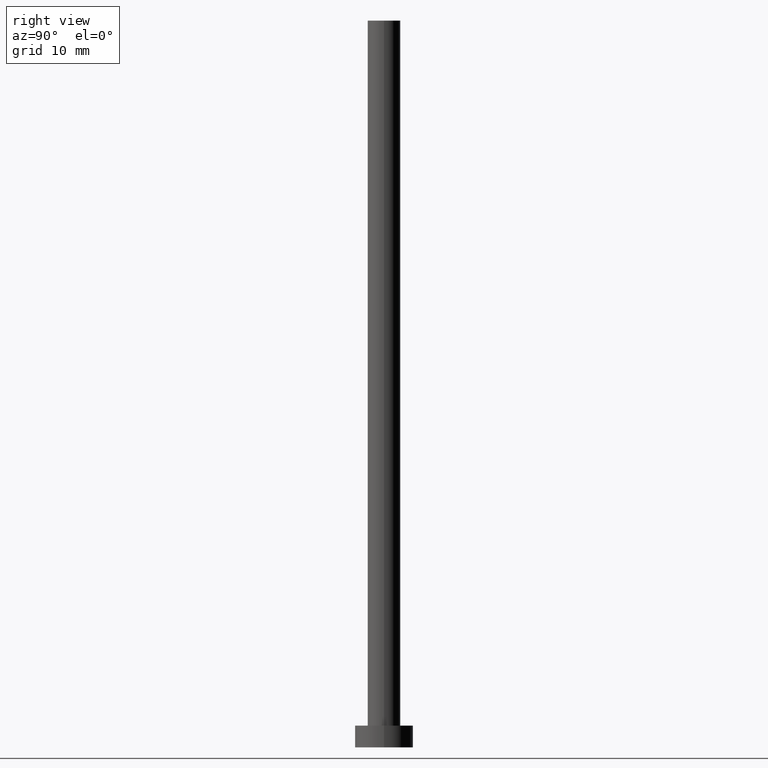
[diagram: clean part render]
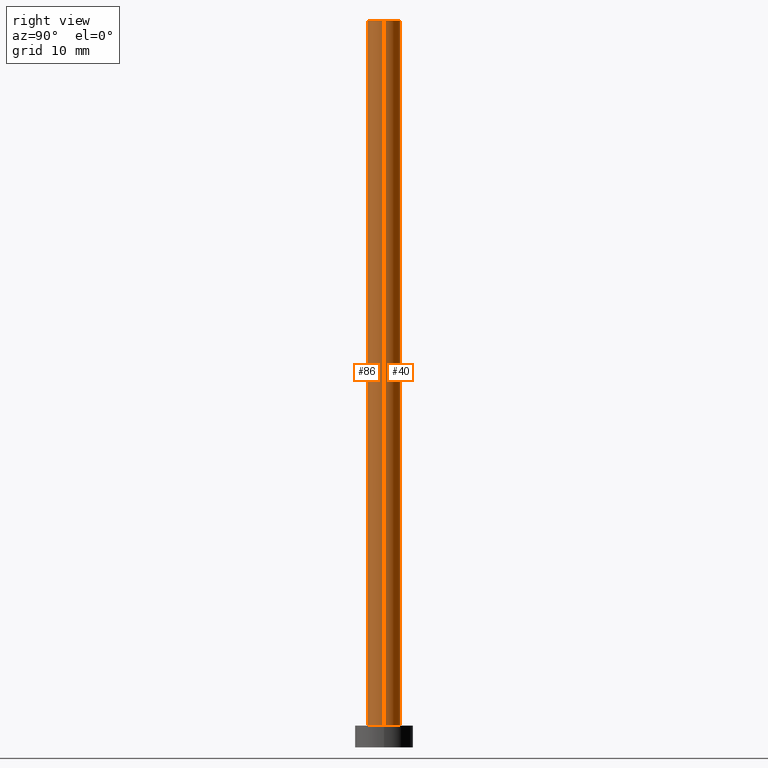
[diagram: same view with one multi-face feature highlighted, each face labeled with its STEP entity id]
A machine part, right view. The highlighted faces form ONE feature: a constant-radius fillet chain: 2 tangent blend faces with common blend radius 2.25 mm. The faces share edges in the B-rep.
Their STEP definitions:
[1] entity #86 (Cylinder):
#4 = CARTESIAN_POINT ( 'NONE',  ( -2.250000000000000000, 0.000000000000000000, 100.0000000000000000 ) ) ;
#17 = DIRECTION ( 'NONE',  ( 0.000000000000000000, 0.000000000000000000, 1.000000000000000000 ) ) ;
#26 = AXIS2_PLACEMENT_3D ( 'NONE', #164, #73, #224 ) ;
#30 = CARTESIAN_POINT ( 'NONE',  ( 0.000000000000000000, 0.000000000000000000, 3.000000000000000000 ) ) ;
#33 = EDGE_CURVE ( 'NONE', #170, #131, #155, .T. ) ;
#62 = VERTEX_POINT ( 'NONE', #187 ) ;
#63 = ORIENTED_EDGE ( 'NONE', *, *, #76, .F. ) ;
#72 = VECTOR ( 'NONE', #217, 1000.000000000000000 ) ;
#73 = DIRECTION ( 'NONE',  ( -0.000000000000000000, -0.000000000000000000, -1.000000000000000000 ) ) ;
#76 = EDGE_CURVE ( 'NONE', #175, #131, #189, .T. ) ;
#78 = DIRECTION ( 'NONE',  ( 1.000000000000000000, 0.000000000000000000, 0.000000000000000000 ) ) ;
#85 = DIRECTION ( 'NONE',  ( 0.000000000000000000, 0.000000000000000000, 1.000000000000000000 ) ) ;
#86 = ADVANCED_FACE ( 'NONE', ( #166 ), #245, .T. ) ;
#92 = DIRECTION ( 'NONE',  ( -0.000000000000000000, -0.000000000000000000, -1.000000000000000000 ) ) ;
#120 = CARTESIAN_POINT ( 'NONE',  ( -2.250000000000000000, 0.000000000000000000, 3.000000000000000000 ) ) ;
#125 = CARTESIAN_POINT ( 'NONE',  ( 2.250000000000000000, 2.755455298081543792E-16, 100.0000000000000000 ) ) ;
#126 = CARTESIAN_POINT ( 'NONE',  ( 0.000000000000000000, 0.000000000000000000, 100.0000000000000000 ) ) ;
#127 = EDGE_CURVE ( 'NONE', #62, #175, #143, .T. ) ;
#129 = ORIENTED_EDGE ( 'NONE', *, *, #127, .F. ) ;
#131 = VERTEX_POINT ( 'NONE', #151 ) ;
#136 = CARTESIAN_POINT ( 'NONE',  ( 2.250000000000000000, 2.755455298081543792E-16, 100.0000000000000000 ) ) ;
#138 = LINE ( 'NONE', #4, #72 ) ;
#143 = CIRCLE ( 'NONE', #254, 2.250000000000000000 ) ;
#151 = CARTESIAN_POINT ( 'NONE',  ( 2.250000000000000000, 2.755455298081543792E-16, 3.000000000000000000 ) ) ;
#155 = CIRCLE ( 'NONE', #253, 2.250000000000000000 ) ;
#157 = ORIENTED_EDGE ( 'NONE', *, *, #179, .T. ) ;
#162 = DIRECTION ( 'NONE',  ( 1.000000000000000000, 0.000000000000000000, 0.000000000000000000 ) ) ;
#164 = CARTESIAN_POINT ( 'NONE',  ( 0.000000000000000000, 0.000000000000000000, 100.0000000000000000 ) ) ;
#166 = FACE_OUTER_BOUND ( 'NONE', #225, .T. ) ;
#170 = VERTEX_POINT ( 'NONE', #120 ) ;
#175 = VERTEX_POINT ( 'NONE', #136 ) ;
#179 = EDGE_CURVE ( 'NONE', #62, #170, #138, .T. ) ;
#187 = CARTESIAN_POINT ( 'NONE',  ( -2.250000000000000000, 0.000000000000000000, 100.0000000000000000 ) ) ;
#189 = LINE ( 'NONE', #125, #235 ) ;
#216 = ORIENTED_EDGE ( 'NONE', *, *, #33, .T. ) ;
#217 = DIRECTION ( 'NONE',  ( -0.000000000000000000, -0.000000000000000000, -1.000000000000000000 ) ) ;
#224 = DIRECTION ( 'NONE',  ( -1.000000000000000000, 0.000000000000000000, 0.000000000000000000 ) ) ;
#225 = EDGE_LOOP ( 'NONE', ( #63, #129, #157, #216 ) ) ;
#235 = VECTOR ( 'NONE', #92, 1000.000000000000000 ) ;
#245 = CYLINDRICAL_SURFACE ( 'NONE', #26, 2.250000000000000000 ) ;
#253 = AXIS2_PLACEMENT_3D ( 'NONE', #30, #85, #162 ) ;
#254 = AXIS2_PLACEMENT_3D ( 'NONE', #126, #17, #78 ) ;
[2] entity #40 (Cylinder):
#4 = CARTESIAN_POINT ( 'NONE',  ( -2.250000000000000000, 0.000000000000000000, 100.0000000000000000 ) ) ;
#11 = CARTESIAN_POINT ( 'NONE',  ( 0.000000000000000000, 0.000000000000000000, 100.0000000000000000 ) ) ;
#14 = DIRECTION ( 'NONE',  ( 0.000000000000000000, 0.000000000000000000, 1.000000000000000000 ) ) ;
#32 = DIRECTION ( 'NONE',  ( -1.000000000000000000, 0.000000000000000000, 0.000000000000000000 ) ) ;
#38 = CIRCLE ( 'NONE', #61, 2.250000000000000000 ) ;
#40 = ADVANCED_FACE ( 'NONE', ( #100 ), #192, .T. ) ;
#48 = CARTESIAN_POINT ( 'NONE',  ( 0.000000000000000000, 0.000000000000000000, 3.000000000000000000 ) ) ;
#56 = CIRCLE ( 'NONE', #114, 2.250000000000000000 ) ;
#61 = AXIS2_PLACEMENT_3D ( 'NONE', #48, #145, #229 ) ;
#62 = VERTEX_POINT ( 'NONE', #187 ) ;
#72 = VECTOR ( 'NONE', #217, 1000.000000000000000 ) ;
#76 = EDGE_CURVE ( 'NONE', #175, #131, #189, .T. ) ;
#89 = EDGE_CURVE ( 'NONE', #131, #170, #38, .T. ) ;
#92 = DIRECTION ( 'NONE',  ( -0.000000000000000000, -0.000000000000000000, -1.000000000000000000 ) ) ;
#97 = DIRECTION ( 'NONE',  ( -0.000000000000000000, -0.000000000000000000, -1.000000000000000000 ) ) ;
#100 = FACE_OUTER_BOUND ( 'NONE', #147, .T. ) ;
#114 = AXIS2_PLACEMENT_3D ( 'NONE', #193, #14, #172 ) ;
#117 = AXIS2_PLACEMENT_3D ( 'NONE', #11, #97, #32 ) ;
#118 = EDGE_CURVE ( 'NONE', #175, #62, #56, .T. ) ;
#120 = CARTESIAN_POINT ( 'NONE',  ( -2.250000000000000000, 0.000000000000000000, 3.000000000000000000 ) ) ;
#125 = CARTESIAN_POINT ( 'NONE',  ( 2.250000000000000000, 2.755455298081543792E-16, 100.0000000000000000 ) ) ;
#131 = VERTEX_POINT ( 'NONE', #151 ) ;
#136 = CARTESIAN_POINT ( 'NONE',  ( 2.250000000000000000, 2.755455298081543792E-16, 100.0000000000000000 ) ) ;
#138 = LINE ( 'NONE', #4, #72 ) ;
#145 = DIRECTION ( 'NONE',  ( 0.000000000000000000, 0.000000000000000000, 1.000000000000000000 ) ) ;
#147 = EDGE_LOOP ( 'NONE', ( #249, #239, #177, #255 ) ) ;
#151 = CARTESIAN_POINT ( 'NONE',  ( 2.250000000000000000, 2.755455298081543792E-16, 3.000000000000000000 ) ) ;
#170 = VERTEX_POINT ( 'NONE', #120 ) ;
#172 = DIRECTION ( 'NONE',  ( 1.000000000000000000, 0.000000000000000000, 0.000000000000000000 ) ) ;
#175 = VERTEX_POINT ( 'NONE', #136 ) ;
#177 = ORIENTED_EDGE ( 'NONE', *, *, #89, .T. ) ;
#179 = EDGE_CURVE ( 'NONE', #62, #170, #138, .T. ) ;
#187 = CARTESIAN_POINT ( 'NONE',  ( -2.250000000000000000, 0.000000000000000000, 100.0000000000000000 ) ) ;
#189 = LINE ( 'NONE', #125, #235 ) ;
#192 = CYLINDRICAL_SURFACE ( 'NONE', #117, 2.250000000000000000 ) ;
#193 = CARTESIAN_POINT ( 'NONE',  ( 0.000000000000000000, 0.000000000000000000, 100.0000000000000000 ) ) ;
#217 = DIRECTION ( 'NONE',  ( -0.000000000000000000, -0.000000000000000000, -1.000000000000000000 ) ) ;
#229 = DIRECTION ( 'NONE',  ( 1.000000000000000000, 0.000000000000000000, 0.000000000000000000 ) ) ;
#235 = VECTOR ( 'NONE', #92, 1000.000000000000000 ) ;
#239 = ORIENTED_EDGE ( 'NONE', *, *, #76, .T. ) ;
#249 = ORIENTED_EDGE ( 'NONE', *, *, #118, .F. ) ;
#255 = ORIENTED_EDGE ( 'NONE', *, *, #179, .F. ) ;